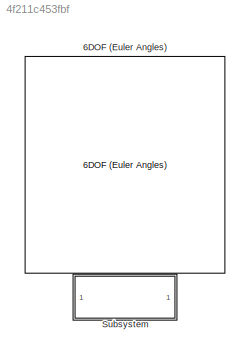
MODEL slx_4f211c453fbf
KIND model
CONFIG AbsTol = auto
CONFIG EnableMultiTasking = off
CONFIG FixedStep = auto
CONFIG MaxStep = auto
CONFIG MinStep = auto
CONFIG RelTol = 1e-3
CONFIG SampleTimeConstraint = Unconstrained
CONFIG SolverName = VariableStepAuto
CONFIG StartTime = 0.0
CONFIG StopTime = 10.0
BLOCK [Reference] 6DOF (Euler Angles)  REF=shared6dof/6DOF (Euler Angles)
  LibrarySourceBlock = aerolib6dof2/6DOF (Euler Angles)
  SourceBlock = shared6dof/6DOF (Euler Angles)
  SourceType = 6DOF EoM (Body Axis)
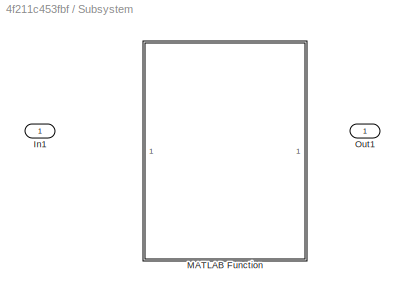
BLOCK [SubSystem] Subsystem
BLOCK [Inport] Subsystem/In1
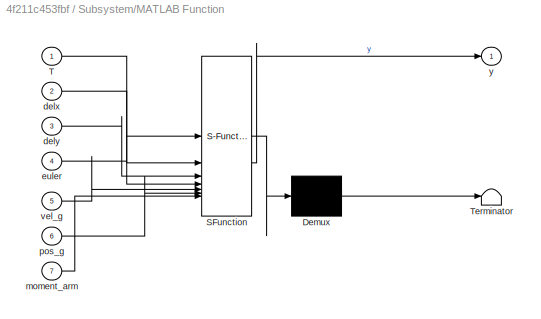
BLOCK [SubSystem] Subsystem/MATLAB Function
  ErrorFcn = Stateflow.Translate.translate
  PermitHierarchicalResolution = ExplicitOnly
  SFBlockType = MATLAB Function
  TreatAsAtomicUnit = on
BLOCK [Demux] Subsystem/MATLAB Function/ Demux 
  Outputs = 1
BLOCK [S-Function] Subsystem/MATLAB Function/ SFunction 
  EnableBusSupport = off
  FunctionName = sf_sfun
  PortCounts = [7 2]
  SFcnIsStateOwnerBlock = off
  SFunctionDeploymentMode = off
  Tag = Stateflow S-Function 2
BLOCK [Terminator] Subsystem/MATLAB Function/ Terminator 
BLOCK [Inport] Subsystem/MATLAB Function/T
BLOCK [Inport] Subsystem/MATLAB Function/delx
  Port = 2
BLOCK [Inport] Subsystem/MATLAB Function/dely
  Port = 3
BLOCK [Inport] Subsystem/MATLAB Function/euler
  Port = 4
BLOCK [Inport] Subsystem/MATLAB Function/moment_arm
  Port = 7
BLOCK [Inport] Subsystem/MATLAB Function/pos_g
  Port = 6
BLOCK [Inport] Subsystem/MATLAB Function/vel_g
  Port = 5
BLOCK [Outport] Subsystem/MATLAB Function/y
BLOCK [Outport] Subsystem/Out1
CHART Subsystem/MATLAB Function states=1 transitions=1
  STATE_LABEL 'eML_blk_kernel()'
  STATE_LABEL 'SCRIPT:\nfunction y = fcn(T,delx,dely,euler,vel_g,pos_g, moment_arm)\n\n\nforce_thrust_b = T*[sin(dely)*cos(delx); -sin(delx); cos(dely)*cos(delx)]\n\ntau = moment_arm * force_thrust;\n\n\n\n\ny = u;\n'
CHART  states=0 transitions=0
